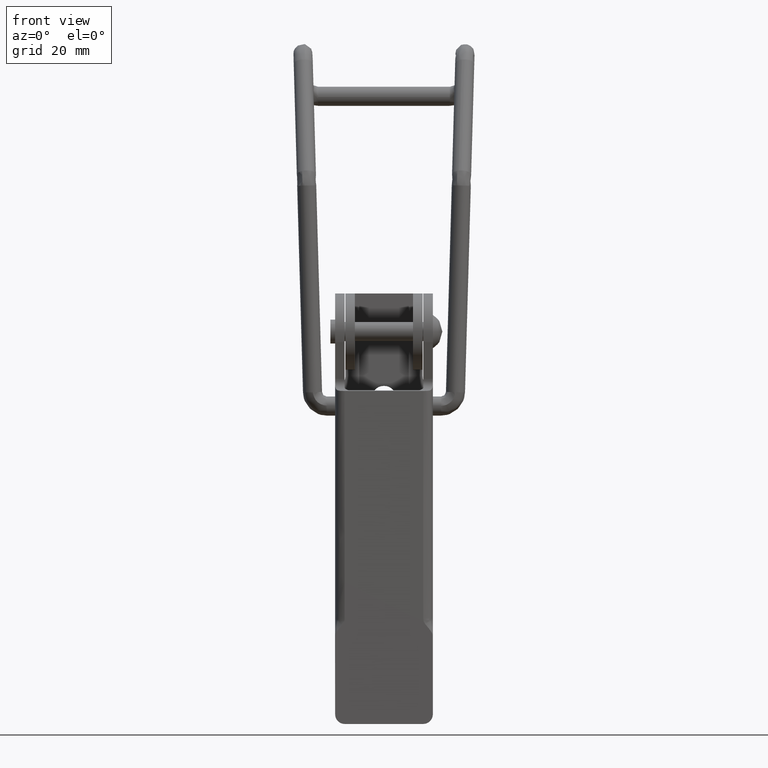
[diagram: clean part render]
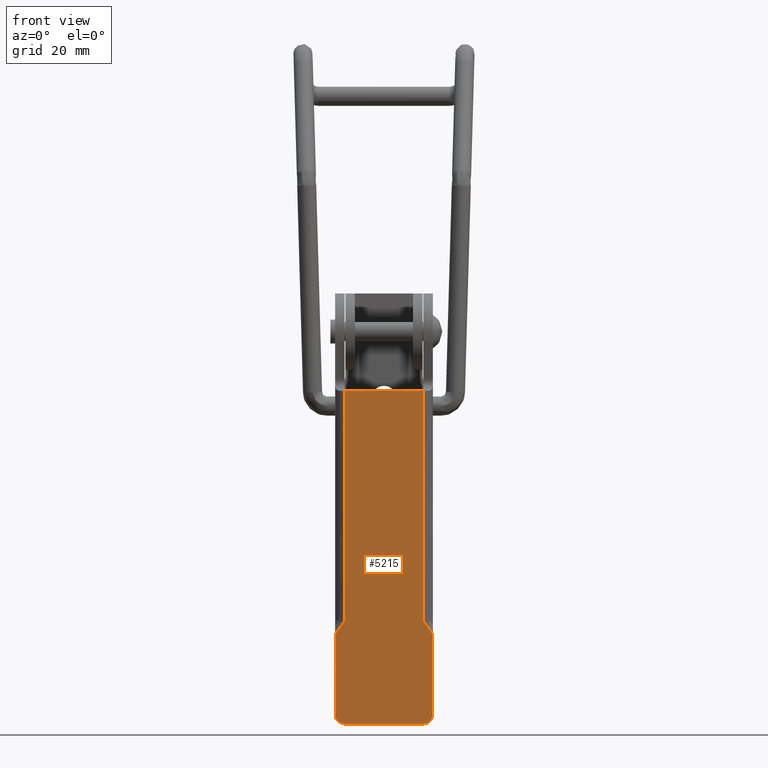
[diagram: same view with one face highlighted and labeled with its STEP entity id]
A machine part, front view. The second image highlights one B-rep face of the part: STEP entity #5215.
In plain terms, the highlighted face is a freeform B-spline surface patch.
Its self-contained STEP definition (entity closure, byte-faithful):
#4156=CARTESIAN_POINT('',(6.299074178204201,-7.262036336245890,-12.460398937932659));
#4157=VERTEX_POINT('',#4156);
#4214=CARTESIAN_POINT('',(6.250000000000000,-7.262000000000001,-12.461000000000000));
#4215=VERTEX_POINT('',#4214);
#4221=CARTESIAN_POINT('',(6.299074178204201,-7.262036336245890,-12.460398937932659));
#4222=CARTESIAN_POINT('',(6.250000000000000,-7.262000000000001,-12.461000000000000));
#4223=QUASI_UNIFORM_CURVE('',1,(#4221,#4222),.UNSPECIFIED.,.F.,.U.);
#4224=EDGE_CURVE('',#4157,#4215,#4223,.T.);
#4249=CARTESIAN_POINT('',(-6.250000000000000,-7.262000000000001,-12.461000000000000));
#4250=VERTEX_POINT('',#4249);
#4251=CARTESIAN_POINT('',(-6.299074178204210,-7.262036336245890,-12.460398937932659));
#4252=VERTEX_POINT('',#4251);
#4253=CARTESIAN_POINT('',(-6.250000000000000,-7.262000000000001,-12.461000000000000));
#4254=CARTESIAN_POINT('',(-6.299074178204210,-7.262036336245890,-12.460398937932659));
#4255=QUASI_UNIFORM_CURVE('',1,(#4253,#4254),.UNSPECIFIED.,.F.,.U.);
#4256=EDGE_CURVE('',#4250,#4252,#4255,.T.);
#4364=CARTESIAN_POINT('',(10.250000000000000,-3.158686477567875,-80.336644516899696));
#4365=VERTEX_POINT('',#4364);
#4366=CARTESIAN_POINT('',(8.250000000000000,-7.262036336245890,-12.460398937932659));
#4367=VERTEX_POINT('',#4366);
#4368=CARTESIAN_POINT('',(10.250000000000000,-3.158686477567875,-80.336644516899696));
#4369=CARTESIAN_POINT('',(10.216666666666640,-3.493669732200400,-74.795463179853201));
#4370=CARTESIAN_POINT('',(10.183333333333319,-3.828652986832925,-69.254281842806705));
#4371=CARTESIAN_POINT('',(10.150000000000000,-4.163636241465450,-63.713100505760288));
#4372=CARTESIAN_POINT('',(10.143333333333320,-4.230632892391954,-62.604864238350999));
#4373=CARTESIAN_POINT('',(8.250000000000000,-4.297629543318460,-61.496627970941702));
#4374=CARTESIAN_POINT('',(8.250000000000000,-4.364626194244965,-60.388391703532399));
#4375=CARTESIAN_POINT('',(8.250000000000000,-5.330429574911940,-44.412394114999152));
#4376=CARTESIAN_POINT('',(8.250000000000000,-6.296232955578917,-28.436396526465899));
#4377=CARTESIAN_POINT('',(8.250000000000000,-7.262036336245894,-12.460398937932650));
#4378=B_SPLINE_CURVE_WITH_KNOTS('',3,(#4368,#4369,#4370,#4371,#4372,#4373,#4374,#4375,#4376,#4377),.UNSPECIFIED.,.F.,.U.,(4,3,3,4),(0.675941326725004,0.755306406090083,0.771179421963099,1.0),.UNSPECIFIED.);
#4379=EDGE_CURVE('',#4365,#4367,#4378,.T.);
#4484=CARTESIAN_POINT('',(-8.250000000000000,-7.262036336245890,-12.460398937932659));
#4485=VERTEX_POINT('',#4484);
#4486=CARTESIAN_POINT('',(-10.250000000000000,-3.158686477567875,-80.336644516899696));
#4487=VERTEX_POINT('',#4486);
#4488=CARTESIAN_POINT('',(-8.250000000000000,-7.262036336245890,-12.460398937932640));
#4489=CARTESIAN_POINT('',(-8.250000000000000,-6.296232955578914,-28.436396526465892));
#4490=CARTESIAN_POINT('',(-8.250000000000000,-5.330429574911937,-44.412394114999152));
#4491=CARTESIAN_POINT('',(-8.250000000000000,-4.364626194244960,-60.388391703532399));
#4492=CARTESIAN_POINT('',(-8.250000000000000,-4.297629543318455,-61.496627970941702));
#4493=CARTESIAN_POINT('',(-10.143333333333320,-4.230632892391951,-62.604864238350999));
#4494=CARTESIAN_POINT('',(-10.150000000000000,-4.163636241465445,-63.713100505760288));
#4495=CARTESIAN_POINT('',(-10.183333333333319,-3.828652986832920,-69.254281842806790));
#4496=CARTESIAN_POINT('',(-10.216666666666640,-3.493669732200400,-74.795463179853201));
#4497=CARTESIAN_POINT('',(-10.250000000000000,-3.158686477567875,-80.336644516899696));
#4498=B_SPLINE_CURVE_WITH_KNOTS('',3,(#4488,#4489,#4490,#4491,#4492,#4493,#4494,#4495,#4496,#4497),.UNSPECIFIED.,.F.,.U.,(4,3,3,4),(0.675941326725004,0.904761904761905,0.920634920634921,1.0),.UNSPECIFIED.);
#4499=EDGE_CURVE('',#4485,#4487,#4498,.T.);
#4595=CARTESIAN_POINT('',(-8.250000000000000,-3.038000000000095,-82.332999999999998));
#4596=VERTEX_POINT('',#4595);
#4602=CARTESIAN_POINT('',(-10.250000000000000,-3.158686477567875,-80.336644516899696));
#4603=CARTESIAN_POINT('',(-10.250061287982531,-3.146838513341297,-80.532629591814270));
#4604=CARTESIAN_POINT('',(-10.186934586059881,-3.121165348462705,-80.957306527514746));
#4605=CARTESIAN_POINT('',(-9.925660039153357,-3.089843653125906,-81.475419571210054));
#4606=CARTESIAN_POINT('',(-9.522230011743663,-3.063639810047853,-81.908874808793868));
#4607=CARTESIAN_POINT('',(-8.986159360132596,-3.043705224107940,-82.238626084549026));
#4608=CARTESIAN_POINT('',(-8.511834474296109,-3.037983147959968,-82.333278760831007));
#4609=CARTESIAN_POINT('',(-8.250000000000000,-3.038000000000095,-82.332999999999998));
#4610=B_SPLINE_CURVE_WITH_KNOTS('',3,(#4602,#4603,#4604,#4605,#4606,#4607,#4608,#4609),.UNSPECIFIED.,.F.,.U.,(4,1,1,1,1,4),(0.000000287531508,0.589049701703622,1.276338437115807,1.718073191767682,2.356253851509653,3.141671700449396),.UNSPECIFIED.);
#4611=EDGE_CURVE('',#4487,#4596,#4610,.T.);
#4655=CARTESIAN_POINT('',(8.250000000000000,-3.038000000000095,-82.332999999999998));
#4656=VERTEX_POINT('',#4655);
#4657=CARTESIAN_POINT('',(8.250000000000000,-3.038000000000095,-82.332999999999998));
#4658=CARTESIAN_POINT('',(8.479089265692403,-3.037990584703285,-82.333155744701187));
#4659=CARTESIAN_POINT('',(8.888058201804947,-3.042288569122113,-82.262059919107088));
#4660=CARTESIAN_POINT('',(9.445019944992808,-3.059725088059099,-81.973630835023926));
#4661=CARTESIAN_POINT('',(9.883958102356543,-3.085560238979774,-81.546274380211429));
#4662=CARTESIAN_POINT('',(10.181498213577081,-3.120182924212149,-80.973557461992399));
#4663=CARTESIAN_POINT('',(10.250115312764381,-3.145850019756377,-80.548980923197931));
#4664=CARTESIAN_POINT('',(10.250000000000000,-3.158686477567875,-80.336644516899696));
#4665=B_SPLINE_CURVE_WITH_KNOTS('',3,(#4657,#4658,#4659,#4660,#4661,#4662,#4663,#4664),.UNSPECIFIED.,.F.,.U.,(4,1,1,1,1,4),(0.000000287155038,0.687241079696426,1.227229533209447,1.865334302523071,2.503529615347456,3.141671577483437),.UNSPECIFIED.);
#4666=EDGE_CURVE('',#4656,#4365,#4665,.T.);
#4926=CARTESIAN_POINT('',(6.250000000000000,-7.262000000000001,-12.461000000000000));
#4927=CARTESIAN_POINT('',(-6.250000000000000,-7.262000000000001,-12.461000000000000));
#4928=QUASI_UNIFORM_CURVE('',1,(#4926,#4927),.UNSPECIFIED.,.F.,.U.);
#4929=EDGE_CURVE('',#4215,#4250,#4928,.T.);
#5186=CARTESIAN_POINT('',(-11.273974960267021,-7.473026982706598,-8.970261994395072));
#5187=CARTESIAN_POINT('',(-11.273974960267021,-2.827009278007733,-85.823138192957046));
#5188=CARTESIAN_POINT('',(11.273975510119870,-7.473026982706598,-8.970261994395072));
#5189=CARTESIAN_POINT('',(11.273975510119870,-2.827009278007733,-85.823138192957046));
#5190=B_SPLINE_SURFACE_WITH_KNOTS('',1,1,((#5186,#5188),(#5187,#5189)),.UNSPECIFIED.,.F.,.F.,.U.,(2,2),(2,2),(0.0,76.993181909204594),(0.0,22.547950470386890),.UNSPECIFIED.);
#5191=ORIENTED_EDGE('',*,*,#4666,.T.);
#5192=ORIENTED_EDGE('',*,*,#4379,.T.);
#5193=CARTESIAN_POINT('',(8.250000000000000,-7.262036336245890,-12.460398937932659));
#5194=CARTESIAN_POINT('',(6.299074178204201,-7.262036336245890,-12.460398937932659));
#5195=QUASI_UNIFORM_CURVE('',1,(#5193,#5194),.UNSPECIFIED.,.F.,.U.);
#5196=EDGE_CURVE('',#4367,#4157,#5195,.T.);
#5197=ORIENTED_EDGE('',*,*,#5196,.T.);
#5198=ORIENTED_EDGE('',*,*,#4224,.T.);
#5199=ORIENTED_EDGE('',*,*,#4929,.T.);
#5200=ORIENTED_EDGE('',*,*,#4256,.T.);
#5201=CARTESIAN_POINT('',(-8.250000000000000,-7.262036336245890,-12.460398937932659));
#5202=CARTESIAN_POINT('',(-6.299074178204210,-7.262036336245890,-12.460398937932659));
#5203=QUASI_UNIFORM_CURVE('',1,(#5201,#5202),.UNSPECIFIED.,.F.,.U.);
#5204=EDGE_CURVE('',#4485,#4252,#5203,.T.);
#5205=ORIENTED_EDGE('',*,*,#5204,.F.);
#5206=ORIENTED_EDGE('',*,*,#4499,.T.);
#5207=ORIENTED_EDGE('',*,*,#4611,.T.);
#5208=CARTESIAN_POINT('',(8.250000000000000,-3.038000000000095,-82.332999999999998));
#5209=CARTESIAN_POINT('',(-8.250000000000000,-3.038000000000095,-82.332999999999998));
#5210=QUASI_UNIFORM_CURVE('',1,(#5208,#5209),.UNSPECIFIED.,.F.,.U.);
#5211=EDGE_CURVE('',#4656,#4596,#5210,.T.);
#5212=ORIENTED_EDGE('',*,*,#5211,.F.);
#5213=EDGE_LOOP('',(#5191,#5192,#5197,#5198,#5199,#5200,#5205,#5206,#5207,#5212));
#5214=FACE_OUTER_BOUND('',#5213,.T.);
#5215=ADVANCED_FACE('',(#5214),#5190,.T.);